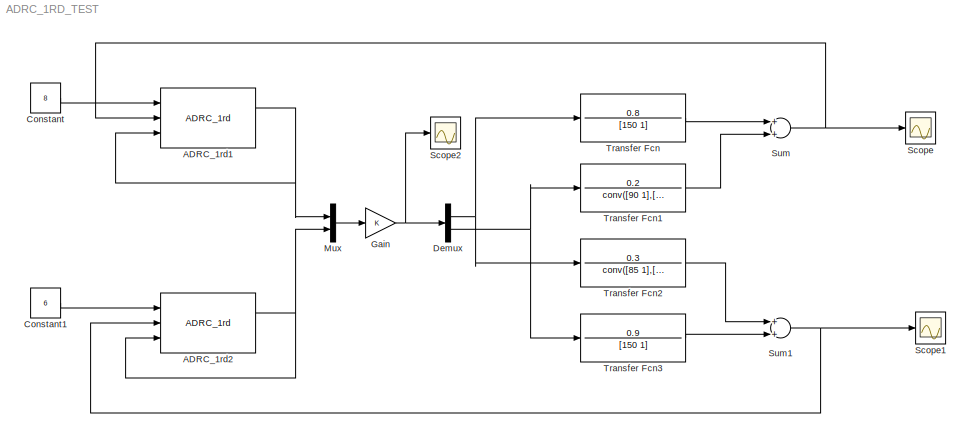
MODEL ADRC_1RD_TEST
KIND model
BLOCK [Reference] ADRC_1rd1  REF=ADRC/ADRC/ADRC_1rd/ADRC_1rd
  B01 = 10
  B02 = 300
  FunctionWithSeparateData = off
  GeneratePreprocessorConditionals = off
  Ports = [3, 2]
  RTWMemSecDataConstants = Inherit from model
  RTWMemSecDataInternal = Inherit from model
  RTWMemSecDataParameters = Inherit from model
  RTWMemSecFuncExecute = Inherit from model
  RTWMemSecFuncInitTerm = Inherit from model
  SID = 22
  ShowPortLabels = FromPortIcon
  SourceBlock = ADRC/ADRC/ADRC_1rd/ADRC_1rd
  SystemSampleTime = -1
  h = 0.1
  r = 0.3
  r0 = 0.003
BLOCK [Reference] ADRC_1rd2  REF=ADRC/ADRC/ADRC_1rd/ADRC_1rd
  B01 = 10
  B02 = 300
  FunctionWithSeparateData = off
  GeneratePreprocessorConditionals = off
  Ports = [3, 2]
  RTWMemSecDataConstants = Inherit from model
  RTWMemSecDataInternal = Inherit from model
  RTWMemSecDataParameters = Inherit from model
  RTWMemSecFuncExecute = Inherit from model
  RTWMemSecFuncInitTerm = Inherit from model
  SID = 30
  ShowPortLabels = FromPortIcon
  SourceBlock = ADRC/ADRC/ADRC_1rd/ADRC_1rd
  SystemSampleTime = -1
  h = 0.1
  r = 0.3
  r0 = 0.003
BLOCK [Constant] Constant
  SID = 3
  Value = 8
BLOCK [Constant] Constant1
  SID = 34
  Value = 6
BLOCK [Demux] Demux
  DisplayOption = bar
  Outputs = 2
  Ports = [1, 2]
  SID = 35
BLOCK [Gain] Gain
  Gain = K
  OutDataTypeStr = Inherit: Inherit via internal rule
  ParamDataTypeStr = Inherit: Inherit via internal rule
  SID = 37
  SaturateOnIntegerOverflow = off
BLOCK [Mux] Mux
  DisplayOption = bar
  Inputs = 2
  Ports = [2, 1]
  SID = 36
BLOCK [Scope] Scope
  DataFormat = Array
  Floating = off
  LimitDataPoints = off
  NumInputPorts = 1
  Ports = [1]
  SID = 4
  SampleTime = 0
  SaveToWorkspace = on
  TimeRange = 500
  YMax = 8.0002
  YMin = 7.9999
BLOCK [Scope] Scope1
  DataFormat = Array
  Floating = off
  LimitDataPoints = off
  NumInputPorts = 1
  Ports = [1]
  SID = 40
  SampleTime = 0
  SaveName = ScopeData1
  SaveToWorkspace = on
  TimeRange = 500
  YMax = 8.0002
  YMin = 7.9999
BLOCK [Scope] Scope2
  DataFormat = Array
  Floating = off
  LimitDataPoints = off
  NumInputPorts = 1
  Ports = [1]
  SID = 41
  SampleTime = 0
  SaveName = ScopeData2
  SaveToWorkspace = on
  TimeRange = 500
  YMax = 8.0002
  YMin = 7.9999
BLOCK [Sum] Sum
  InputSameDT = off
  OutDataTypeStr = Inherit: Inherit via internal rule
  Ports = [2, 1]
  SID = 42
  SaturateOnIntegerOverflow = off
BLOCK [Sum] Sum1
  InputSameDT = off
  OutDataTypeStr = Inherit: Inherit via internal rule
  Ports = [2, 1]
  SID = 43
  SaturateOnIntegerOverflow = off
BLOCK [TransferFcn] Transfer Fcn
  Denominator = [150 1]
  Numerator = 0.8
  SID = 2
BLOCK [TransferFcn] Transfer Fcn1
  Denominator = conv([90 1],[50 1])
  Numerator = 0.2
  SID = 31
BLOCK [TransferFcn] Transfer Fcn2
  Denominator = conv([85 1],[60 1])
  Numerator = 0.3
  SID = 32
BLOCK [TransferFcn] Transfer Fcn3
  Denominator = [150 1]
  Numerator = 0.9
  SID = 33
NET ADRC_1rd1:1 -> ADRC_1rd1:3, Mux:1
NET ADRC_1rd2:1 -> ADRC_1rd2:3, Mux:2
LINE Constant1:1 -> ADRC_1rd2:1
LINE Constant:1 -> ADRC_1rd1:1
NET Demux:1 -> Transfer Fcn2:1, Transfer Fcn:1
NET Demux:2 -> Transfer Fcn1:1, Transfer Fcn3:1
NET Gain:1 -> Demux:1, Scope2:1
LINE Mux:1 -> Gain:1
NET Sum1:1 -> ADRC_1rd2:2, Scope1:1
NET Sum:1 -> ADRC_1rd1:2, Scope:1
LINE Transfer Fcn1:1 -> Sum:2
LINE Transfer Fcn2:1 -> Sum1:1
LINE Transfer Fcn3:1 -> Sum1:2
LINE Transfer Fcn:1 -> Sum:1
note: NET lines group one-source signal fan-out (src -> all destinations, sorted); 1:1 wires keep LINE
